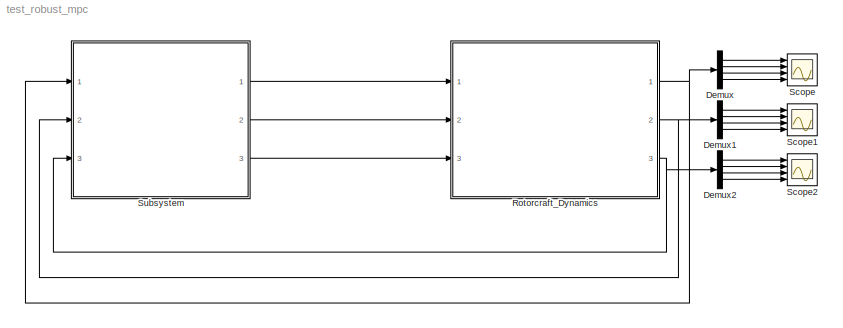
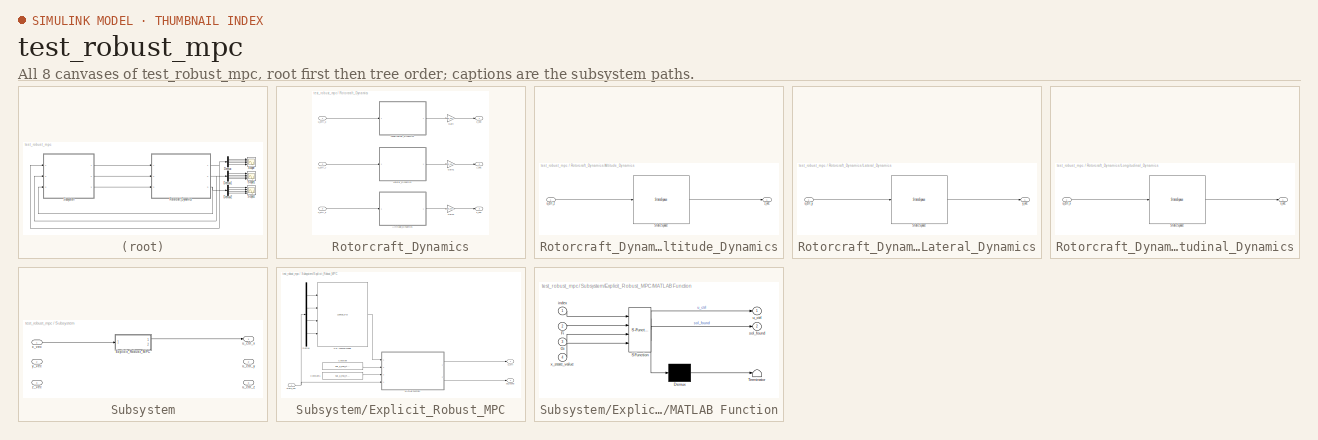
[diagram: thumbnail index - all 8 canvases of the model, root first then tree order]
MODEL test_robust_mpc
KIND model
BLOCK [Demux] Demux
  DisplayOption = bar
  Ports = [1, 4]
  SID = 32
BLOCK [Demux] Demux1
  DisplayOption = bar
  Ports = [1, 4]
  SID = 33
BLOCK [Demux] Demux2
  DisplayOption = bar
  Ports = [1, 4]
  SID = 35
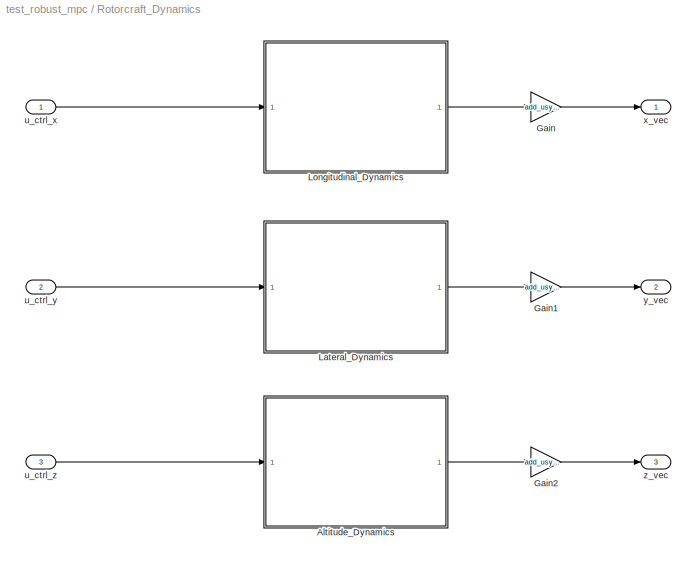
BLOCK [SubSystem] Rotorcraft_Dynamics
  FunctionWithSeparateData = off
  MaskHideContents = off
  MinAlgLoopOccurrences = off
  Opaque = off
  Ports = [3, 3]
  PropExecContextOutsideSubsystem = off
  RTWSystemCode = Auto
  RequestExecContextInheritance = off
  SID = 1
BLOCK [SubSystem] Rotorcraft_Dynamics/Altitude_Dynamics
  FunctionWithSeparateData = off
  MaskHideContents = off
  MinAlgLoopOccurrences = off
  Opaque = off
  Ports = [1, 1]
  PropExecContextOutsideSubsystem = off
  RTWSystemCode = Auto
  RequestExecContextInheritance = off
  SID = 13
BLOCK [StateSpace] Rotorcraft_Dynamics/Altitude_Dynamics/State-Space
  A = add_usys_z_d.continuous.matrices.A
  B = add_usys_z_d.continuous.matrices.B
  C = add_usys_z_d.continuous.matrices.C
  D = add_usys_z_d.continuous.matrices.D
  SID = 22
  X0 = zeros(length(add_usys_z_d.continuous.matrices.A),1)
BLOCK [Inport] Rotorcraft_Dynamics/Altitude_Dynamics/u_ctrl_z
  IconDisplay = Port number
  SID = 21
BLOCK [Outport] Rotorcraft_Dynamics/Altitude_Dynamics/z_vec
  IconDisplay = Port number
  SID = 23
BLOCK [Gain] Rotorcraft_Dynamics/Gain
  Gain = add_usys_x_d.Ts
  OutDataTypeStr = Inherit: Inherit via internal rule
  ParamDataTypeStr = Inherit: Inherit via internal rule
  SID = 37
  SaturateOnIntegerOverflow = off
BLOCK [Gain] Rotorcraft_Dynamics/Gain1
  Gain = add_usys_y_d.Ts
  OutDataTypeStr = Inherit: Inherit via internal rule
  ParamDataTypeStr = Inherit: Inherit via internal rule
  SID = 38
  SaturateOnIntegerOverflow = off
BLOCK [Gain] Rotorcraft_Dynamics/Gain2
  Gain = add_usys_x_z.Ts
  OutDataTypeStr = Inherit: Inherit via internal rule
  ParamDataTypeStr = Inherit: Inherit via internal rule
  SID = 39
  SaturateOnIntegerOverflow = off
BLOCK [SubSystem] Rotorcraft_Dynamics/Lateral_Dynamics
  FunctionWithSeparateData = off
  MaskHideContents = off
  MinAlgLoopOccurrences = off
  Opaque = off
  Ports = [1, 1]
  PropExecContextOutsideSubsystem = off
  RTWSystemCode = Auto
  RequestExecContextInheritance = off
  SID = 8
BLOCK [StateSpace] Rotorcraft_Dynamics/Lateral_Dynamics/State-Space
  A = add_usys_y_d.continuous.matrices.A
  B = add_usys_y_d.continuous.matrices.B
  C = add_usys_y_d.continuous.matrices.C
  D = add_usys_y_d.continuous.matrices.D
  SID = 19
  X0 = zeros(length(add_usys_y_d.continuous.matrices.A),1)
BLOCK [Inport] Rotorcraft_Dynamics/Lateral_Dynamics/u_ctrl_y
  IconDisplay = Port number
  SID = 18
BLOCK [Outport] Rotorcraft_Dynamics/Lateral_Dynamics/y_vec
  IconDisplay = Port number
  SID = 20
BLOCK [SubSystem] Rotorcraft_Dynamics/Longitudinal_Dynamics
  FunctionWithSeparateData = off
  MaskHideContents = off
  MinAlgLoopOccurrences = off
  Opaque = off
  Ports = [1, 1]
  PropExecContextOutsideSubsystem = off
  RTWSystemCode = Auto
  RequestExecContextInheritance = off
  SID = 4
BLOCK [StateSpace] Rotorcraft_Dynamics/Longitudinal_Dynamics/State-Space
  A = add_usys_x_d.continuous.matrices.A
  B = add_usys_x_d.continuous.matrices.B
  C = add_usys_x_d.continuous.matrices.C
  D = add_usys_x_d.continuous.matrices.D
  SID = 17
  X0 = zeros(length(add_usys_x_d.continuous.matrices.A),1)
BLOCK [Inport] Rotorcraft_Dynamics/Longitudinal_Dynamics/u_ctrl_x
  IconDisplay = Port number
  SID = 5
BLOCK [Outport] Rotorcraft_Dynamics/Longitudinal_Dynamics/x_vec
  IconDisplay = Port number
  SID = 6
BLOCK [Inport] Rotorcraft_Dynamics/u_ctrl_x
  IconDisplay = Port number
  SID = 2
BLOCK [Inport] Rotorcraft_Dynamics/u_ctrl_y
  IconDisplay = Port number
  Port = 2
  SID = 7
BLOCK [Inport] Rotorcraft_Dynamics/u_ctrl_z
  IconDisplay = Port number
  Port = 3
  SID = 12
BLOCK [Outport] Rotorcraft_Dynamics/x_vec
  IconDisplay = Port number
  SID = 3
BLOCK [Outport] Rotorcraft_Dynamics/y_vec
  IconDisplay = Port number
  Port = 2
  SID = 11
BLOCK [Outport] Rotorcraft_Dynamics/z_vec
  IconDisplay = Port number
  Port = 3
  SID = 16
BLOCK [Scope] Scope
  DataFormat = StructureWithTime
  Floating = off
  NumInputPorts = 4
  Ports = [4]
  SID = 31
  SampleTime = 0
  ShowLegends = off
  YMax = 5~5~5~5
  YMin = -5~-5~-5~-5
BLOCK [Scope] Scope1
  DataFormat = StructureWithTime
  Floating = off
  NumInputPorts = 4
  Ports = [4]
  SID = 34
  SampleTime = 0
  SaveName = ScopeData1
  ShowLegends = off
  YMax = 5~5~5~5
  YMin = -5~-5~-5~-5
BLOCK [Scope] Scope2
  DataFormat = StructureWithTime
  Floating = off
  NumInputPorts = 4
  Ports = [4]
  SID = 36
  SampleTime = 0
  SaveName = ScopeData2
  ShowLegends = off
  YMax = 5~5~5~5
  YMin = -5~-5~-5~-5
BLOCK [SubSystem] Subsystem
  FunctionWithSeparateData = off
  MaskHideContents = off
  MinAlgLoopOccurrences = off
  Opaque = off
  Ports = [3, 3]
  PropExecContextOutsideSubsystem = off
  RTWSystemCode = Auto
  RequestExecContextInheritance = off
  SID = 24
BLOCK [SubSystem] Subsystem/Explicit_Robust_MPC
  FunctionWithSeparateData = off
  MaskHideContents = off
  MinAlgLoopOccurrences = off
  Opaque = off
  Ports = [1, 2]
  PropExecContextOutsideSubsystem = off
  RTWSystemCode = Auto
  RequestExecContextInheritance = off
  SID = 40
BLOCK [Constant] Subsystem/Explicit_Robust_MPC/Constant
  SID = 45
  Value = sol_x_mp_rt.Fi
BLOCK [Constant] Subsystem/Explicit_Robust_MPC/Constant1
  SID = 46
  Value = sol_x_mp_rt.Gi
BLOCK [Demux] Subsystem/Explicit_Robust_MPC/Demux
  DisplayOption = bar
  Ports = [1, 4]
  SID = 59
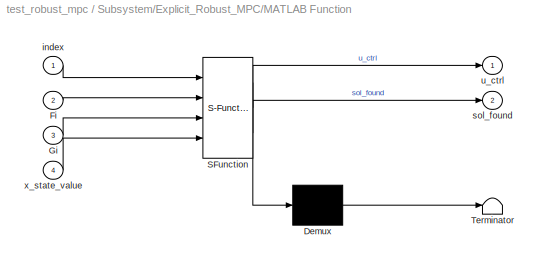
BLOCK [SubSystem] Subsystem/Explicit_Robust_MPC/MATLAB Function
  ErrorFcn = Stateflow.Translate.translate
  FunctionWithSeparateData = off
  MaskHideContents = off
  MinAlgLoopOccurrences = off
  Opaque = off
  PermitHierarchicalResolution = ExplicitOnly
  Ports = [4, 2]
  PropExecContextOutsideSubsystem = off
  RTWSystemCode = Auto
  RequestExecContextInheritance = off
  SFBlockType = MATLAB Function
  SID = 43
  TreatAsAtomicUnit = on
BLOCK [Demux] Subsystem/Explicit_Robust_MPC/MATLAB Function/ Demux 
  Outputs = 1
  Ports = [1, 1]
  SID = 43::19
BLOCK [S-Function] Subsystem/Explicit_Robust_MPC/MATLAB Function/ SFunction 
  EnableBusSupport = off
  FunctionName = sf_sfun
  PortCounts = [4 3]
  Ports = [4, 3]
  SID = 43::18
  Tag = Stateflow S-Function test_robust_mpc 2
BLOCK [Terminator] Subsystem/Explicit_Robust_MPC/MATLAB Function/ Terminator 
  SID = 43::20
BLOCK [Inport] Subsystem/Explicit_Robust_MPC/MATLAB Function/Fi
  IconDisplay = Port number
  Port = 2
  SID = 43::23
BLOCK [Inport] Subsystem/Explicit_Robust_MPC/MATLAB Function/Gi
  IconDisplay = Port number
  Port = 3
  SID = 43::24
BLOCK [Inport] Subsystem/Explicit_Robust_MPC/MATLAB Function/index
  IconDisplay = Port number
  SID = 43::1
BLOCK [Outport] Subsystem/Explicit_Robust_MPC/MATLAB Function/sol_found
  IconDisplay = Port number
  Port = 2
  SID = 43::22
BLOCK [Outport] Subsystem/Explicit_Robust_MPC/MATLAB Function/u_ctrl
  IconDisplay = Port number
  SID = 43::5
BLOCK [Inport] Subsystem/Explicit_Robust_MPC/MATLAB Function/x_state_value
  IconDisplay = Port number
  Port = 4
  SID = 43::21
BLOCK [Lookup_n-D] Subsystem/Explicit_Robust_MPC/n-D Lookup\nTable
  BreakpointsForDimension1 = STATESGRID.VECTORS.X1
  BreakpointsForDimension2 = STATESGRID.VECTORS.X2
  BreakpointsForDimension3 = STATESGRID.VECTORS.X3
  BreakpointsForDimension4 = STATESGRID.VECTORS.X4
  NumberOfTableDimensions = 4
  Ports = [4, 1]
  RndMeth = Simplest
  SID = 58
  Table = index_row
BLOCK [Outport] Subsystem/Explicit_Robust_MPC/sol_found
  IconDisplay = Port number
  Port = 2
  SID = 44
BLOCK [Inport] Subsystem/Explicit_Robust_MPC/state_vec
  IconDisplay = Port number
  SID = 41
BLOCK [Outport] Subsystem/Explicit_Robust_MPC/u_ctrl
  IconDisplay = Port number
  SID = 42
BLOCK [Outport] Subsystem/u_ctrl_x
  IconDisplay = Port number
  SID = 26
BLOCK [Outport] Subsystem/u_ctrl_y
  IconDisplay = Port number
  Port = 2
  SID = 27
BLOCK [Outport] Subsystem/u_ctrl_z
  IconDisplay = Port number
  Port = 3
  SID = 28
BLOCK [Inport] Subsystem/x_vec
  IconDisplay = Port number
  SID = 25
BLOCK [Inport] Subsystem/y_vec
  IconDisplay = Port number
  Port = 2
  SID = 29
BLOCK [Inport] Subsystem/z_vec
  IconDisplay = Port number
  Port = 3
  SID = 30
LINE Demux1:1 -> Scope1:1
LINE Demux1:2 -> Scope1:2
LINE Demux1:3 -> Scope1:3
LINE Demux1:4 -> Scope1:4
LINE Demux2:1 -> Scope2:1
LINE Demux2:2 -> Scope2:2
LINE Demux2:3 -> Scope2:3
LINE Demux2:4 -> Scope2:4
LINE Demux:1 -> Scope:1
LINE Demux:2 -> Scope:2
LINE Demux:3 -> Scope:3
LINE Demux:4 -> Scope:4
LINE Rotorcraft_Dynamics/Altitude_Dynamics/State-Space:1 -> Rotorcraft_Dynamics/Altitude_Dynamics/z_vec:1
LINE Rotorcraft_Dynamics/Altitude_Dynamics/u_ctrl_z:1 -> Rotorcraft_Dynamics/Altitude_Dynamics/State-Space:1
LINE Rotorcraft_Dynamics/Altitude_Dynamics:1 -> Rotorcraft_Dynamics/Gain2:1
LINE Rotorcraft_Dynamics/Gain1:1 -> Rotorcraft_Dynamics/y_vec:1
LINE Rotorcraft_Dynamics/Gain2:1 -> Rotorcraft_Dynamics/z_vec:1
LINE Rotorcraft_Dynamics/Gain:1 -> Rotorcraft_Dynamics/x_vec:1
LINE Rotorcraft_Dynamics/Lateral_Dynamics/State-Space:1 -> Rotorcraft_Dynamics/Lateral_Dynamics/y_vec:1
LINE Rotorcraft_Dynamics/Lateral_Dynamics/u_ctrl_y:1 -> Rotorcraft_Dynamics/Lateral_Dynamics/State-Space:1
LINE Rotorcraft_Dynamics/Lateral_Dynamics:1 -> Rotorcraft_Dynamics/Gain1:1
LINE Rotorcraft_Dynamics/Longitudinal_Dynamics/State-Space:1 -> Rotorcraft_Dynamics/Longitudinal_Dynamics/x_vec:1
LINE Rotorcraft_Dynamics/Longitudinal_Dynamics/u_ctrl_x:1 -> Rotorcraft_Dynamics/Longitudinal_Dynamics/State-Space:1
LINE Rotorcraft_Dynamics/Longitudinal_Dynamics:1 -> Rotorcraft_Dynamics/Gain:1
LINE Rotorcraft_Dynamics/u_ctrl_x:1 -> Rotorcraft_Dynamics/Longitudinal_Dynamics:1
LINE Rotorcraft_Dynamics/u_ctrl_y:1 -> Rotorcraft_Dynamics/Lateral_Dynamics:1
LINE Rotorcraft_Dynamics/u_ctrl_z:1 -> Rotorcraft_Dynamics/Altitude_Dynamics:1
NET Rotorcraft_Dynamics:1 -> Demux:1, Subsystem:1
NET Rotorcraft_Dynamics:2 -> Demux1:1, Subsystem:2
NET Rotorcraft_Dynamics:3 -> Demux2:1, Subsystem:3
LINE Subsystem/Explicit_Robust_MPC/Constant1:1 -> Subsystem/Explicit_Robust_MPC/MATLAB Function:3
LINE Subsystem/Explicit_Robust_MPC/Constant:1 -> Subsystem/Explicit_Robust_MPC/MATLAB Function:2
LINE Subsystem/Explicit_Robust_MPC/Demux:1 -> Subsystem/Explicit_Robust_MPC/n-D Lookup\nTable:1
LINE Subsystem/Explicit_Robust_MPC/Demux:2 -> Subsystem/Explicit_Robust_MPC/n-D Lookup\nTable:2
LINE Subsystem/Explicit_Robust_MPC/Demux:3 -> Subsystem/Explicit_Robust_MPC/n-D Lookup\nTable:3
LINE Subsystem/Explicit_Robust_MPC/Demux:4 -> Subsystem/Explicit_Robust_MPC/n-D Lookup\nTable:4
LINE Subsystem/Explicit_Robust_MPC/MATLAB Function/ Demux :1 -> Subsystem/Explicit_Robust_MPC/MATLAB Function/ Terminator :1
LINE Subsystem/Explicit_Robust_MPC/MATLAB Function/ SFunction :1 -> Subsystem/Explicit_Robust_MPC/MATLAB Function/ Demux :1
LINE Subsystem/Explicit_Robust_MPC/MATLAB Function/ SFunction :2 -> Subsystem/Explicit_Robust_MPC/MATLAB Function/u_ctrl:1
LINE Subsystem/Explicit_Robust_MPC/MATLAB Function/ SFunction :3 -> Subsystem/Explicit_Robust_MPC/MATLAB Function/sol_found:1
LINE Subsystem/Explicit_Robust_MPC/MATLAB Function/Fi:1 -> Subsystem/Explicit_Robust_MPC/MATLAB Function/ SFunction :2
LINE Subsystem/Explicit_Robust_MPC/MATLAB Function/Gi:1 -> Subsystem/Explicit_Robust_MPC/MATLAB Function/ SFunction :3
LINE Subsystem/Explicit_Robust_MPC/MATLAB Function/index:1 -> Subsystem/Explicit_Robust_MPC/MATLAB Function/ SFunction :1
LINE Subsystem/Explicit_Robust_MPC/MATLAB Function/x_state_value:1 -> Subsystem/Explicit_Robust_MPC/MATLAB Function/ SFunction :4
LINE Subsystem/Explicit_Robust_MPC/MATLAB Function:1 -> Subsystem/Explicit_Robust_MPC/u_ctrl:1
LINE Subsystem/Explicit_Robust_MPC/MATLAB Function:2 -> Subsystem/Explicit_Robust_MPC/sol_found:1
LINE Subsystem/Explicit_Robust_MPC/n-D Lookup\nTable:1 -> Subsystem/Explicit_Robust_MPC/MATLAB Function:1
NET Subsystem/Explicit_Robust_MPC/state_vec:1 -> Subsystem/Explicit_Robust_MPC/Demux:1, Subsystem/Explicit_Robust_MPC/MATLAB Function:4
LINE Subsystem/Explicit_Robust_MPC:1 -> Subsystem/u_ctrl_x:1
LINE Subsystem/x_vec:1 -> Subsystem/Explicit_Robust_MPC:1
LINE Subsystem:1 -> Rotorcraft_Dynamics:1
LINE Subsystem:2 -> Rotorcraft_Dynamics:2
LINE Subsystem:3 -> Rotorcraft_Dynamics:3
note: NET lines group one-source signal fan-out (src -> all destinations, sorted); 1:1 wires keep LINE
CHART Subsystem/Explicit_Robust_MPC/MATLAB Function states=1 transitions=1
  STATE_LABEL 'eML_blk_kernel()'
